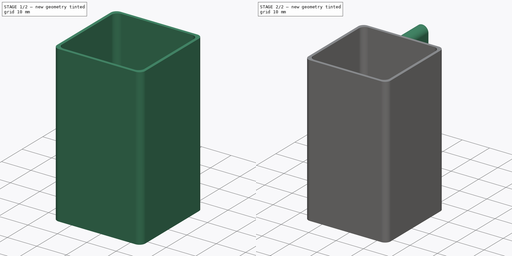
[diagram: build sequence overview — one tinted view per stage of 2, left to right]
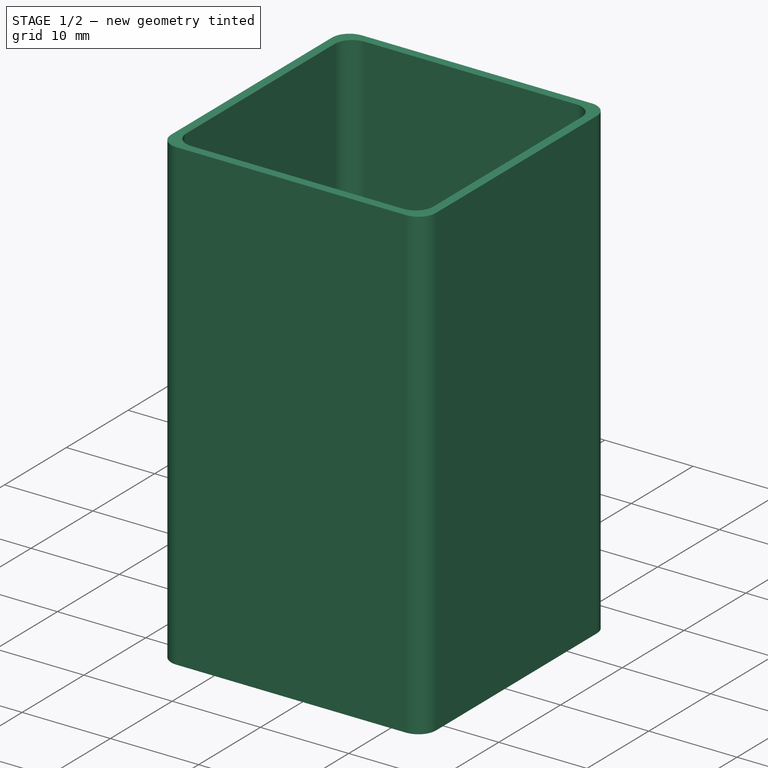
[diagram: stage 1 of 2 — iso view after this stage's code; geometry added in this stage tinted green]
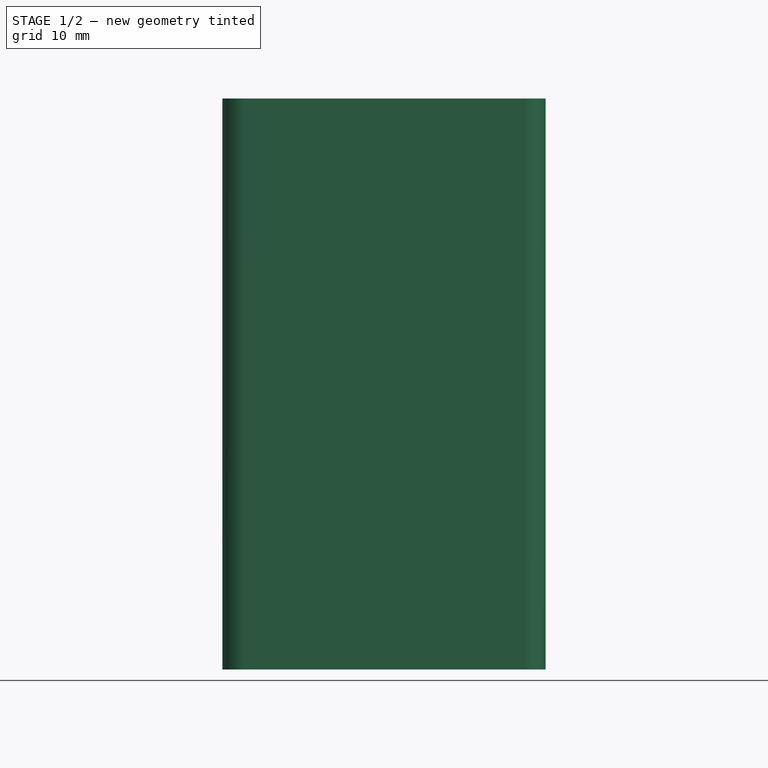
[diagram: stage 1 of 2 — front view after this stage's code; geometry added in this stage tinted green]
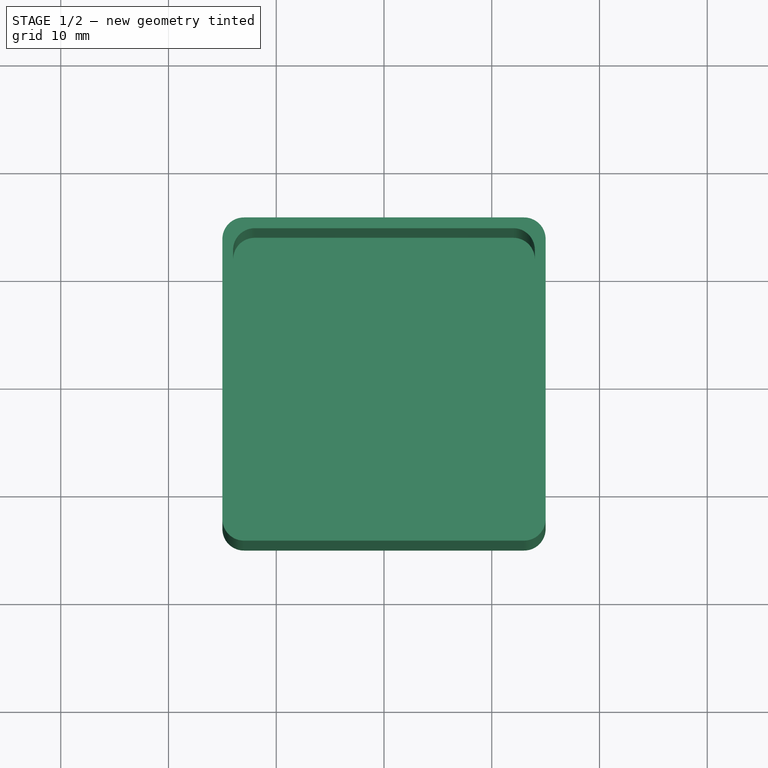
[diagram: stage 1 of 2 — top view after this stage's code; geometry added in this stage tinted green]
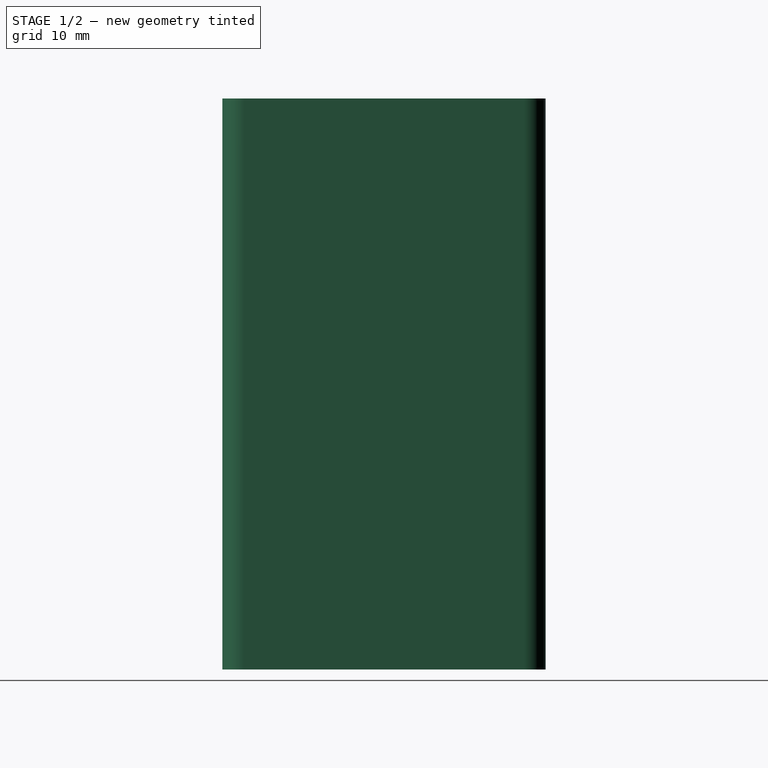
[diagram: stage 1 of 2 — right view after this stage's code; geometry added in this stage tinted green]
FCSTD DOCUMENT  (FreeCAD 1.0R39285 (Git))
Label: Feeler_Guage_Holder
License: All rights reserved
LicenseURL: https://en.wikipedia.org/wiki/All_rights_reserved
objects: Sketcher::SketchObject×4, PartDesign::Pad×4, PartDesign::Body×1
note: 21 computed .brp shape members not serialized (recipe doc carries the construction recipe); baked Part::Feature solids carry a one-line shape summary decoded from their .brp

FEATURE [Sketcher::SketchObject] Sketch
  ArcFitTolerance = 1e-06
  AttachmentSupport = -> [XY_Plane]
  FullyConstrained = true
  MakeInternals = false
  MapMode = 5
  sketch-geometry (12):
    g0: LineSegment StartX=-15 StartY=13 StartZ=0 EndX=-15 EndY=-13 EndZ=0
    g1: LineSegment StartX=-13 StartY=-15 StartZ=0 EndX=13 EndY=-15 EndZ=0
    g2: LineSegment StartX=15 StartY=-13 StartZ=0 EndX=15 EndY=13 EndZ=0
    g3: LineSegment StartX=13 StartY=15 StartZ=0 EndX=-13 EndY=15 EndZ=0
    g4: ArcOfCircle CenterX=-13 CenterY=13 CenterZ=0 NormalX=0 NormalY=0 NormalZ=1 AngleXU=0 Radius=2 StartAngle=1.5708 EndAngle=3.14159
    g5: GeomPoint [constr] X=-15 Y=15 Z=0
    g6: ArcOfCircle CenterX=13 CenterY=13 CenterZ=0 NormalX=0 NormalY=0 NormalZ=1 AngleXU=0 Radius=2 StartAngle=0 EndAngle=1.5708
    g7: GeomPoint [constr] X=15 Y=15 Z=0
    g8: ArcOfCircle CenterX=-13 CenterY=-13 CenterZ=0 NormalX=0 NormalY=0 NormalZ=1 AngleXU=0 Radius=2 StartAngle=3.14159 EndAngle=4.71239
    g9: GeomPoint [constr] X=-15 Y=-15 Z=0
    g10: ArcOfCircle CenterX=13 CenterY=-13 CenterZ=0 NormalX=0 NormalY=0 NormalZ=1 AngleXU=0 Radius=2 StartAngle=4.71239 EndAngle=6.28319
    g11: GeomPoint [constr] X=15 Y=-15 Z=0
  constraints (27):
    c: Vertical(g0)
    c: Vertical(g2)
    c: Horizontal(g1)
    c: Horizontal(g3)
    c: Distance(g5,g7) = 30
    c: Distance(g9,g5) = 30
    c: Symmetric(g5,g11,g-1)
    c: PointOnObject(g5,g3)
    c: PointOnObject(g5,g0)
    c: Tangent(g3,g4) = -1.5708
    c: Tangent(g0,g4) = -1.5708
    c: PointOnObject(g7,g3)
    c: PointOnObject(g7,g2)
    c: Tangent(g3,g6) = -1.5708
    c: Tangent(g2,g6) = -1.5708
    c: PointOnObject(g9,g0)
    c: PointOnObject(g9,g1)
    c: Tangent(g0,g8) = -1.5708
    c: Tangent(g1,g8) = -1.5708
    c: PointOnObject(g11,g2)
    c: PointOnObject(g11,g1)
    c: Tangent(g2,g10) = -1.5708
    c: Tangent(g1,g10) = -1.5708
    c: Radius(g10) = 2
    c: Radius(g8) = 2
    c: Radius(g4) = 2
    c: Radius(g6) = 2
FEATURE [PartDesign::Pad] Pad
  Direction = (0,0,1)
  Length = 2
  Length2 = 10
  Profile = -> Sketch
  ReferenceAxis = -> Sketch [N_Axis]
  Refine = true
  Suppressed = false
  Type = 0
FEATURE [Sketcher::SketchObject] Sketch001
  ArcFitTolerance = 1e-06
  AttachmentSupport = -> [Pad]
  FullyConstrained = true
  MakeInternals = false
  MapMode = 5
  Placement = pos=(0,0,2) rot=(0,0,1;0rad)
  sketch-geometry (24):
    g0: LineSegment StartX=-15 StartY=13 StartZ=0 EndX=-15 EndY=-13 EndZ=0
    g1: LineSegment StartX=-13 StartY=-15 StartZ=0 EndX=13 EndY=-15 EndZ=0
    g2: LineSegment StartX=15 StartY=-13 StartZ=0 EndX=15 EndY=13 EndZ=0
    g3: LineSegment StartX=13 StartY=15 StartZ=0 EndX=-13 EndY=15 EndZ=0
    g4: LineSegment StartX=-14 StartY=12 StartZ=0 EndX=-14 EndY=-12 EndZ=0
    g5: LineSegment StartX=-12 StartY=-14 StartZ=0 EndX=12 EndY=-14 EndZ=0
    g6: LineSegment StartX=14 StartY=-12 StartZ=0 EndX=14 EndY=12 EndZ=0
    g7: LineSegment StartX=12 StartY=14 StartZ=0 EndX=-12 EndY=14 EndZ=0
    g8: ArcOfCircle CenterX=-13 CenterY=13 CenterZ=0 NormalX=0 NormalY=0 NormalZ=1 AngleXU=0 Radius=2 StartAngle=1.5708 EndAngle=3.14159
    g9: GeomPoint [constr] X=-15 Y=15 Z=0
    g10: ArcOfCircle CenterX=13 CenterY=13 CenterZ=0 NormalX=0 NormalY=0 NormalZ=1 AngleXU=0 Radius=2 StartAngle=3e-16 EndAngle=1.5708
    g11: GeomPoint [constr] X=15 Y=15 Z=0
    g12: ArcOfCircle CenterX=13 CenterY=-13 CenterZ=0 NormalX=0 NormalY=0 NormalZ=1 AngleXU=0 Radius=2 StartAngle=4.71239 EndAngle=6.28319
    g13: GeomPoint [constr] X=15 Y=-15 Z=0
    g14: ArcOfCircle CenterX=-13 CenterY=-13 CenterZ=0 NormalX=0 NormalY=0 NormalZ=1 AngleXU=0 Radius=2 StartAngle=3.14159 EndAngle=4.71239
    g15: GeomPoint [constr] X=-15 Y=-15 Z=0
    g16: ArcOfCircle CenterX=-12 CenterY=12 CenterZ=0 NormalX=0 NormalY=0 NormalZ=1 AngleXU=0 Radius=2 StartAngle=1.5708 EndAngle=3.14159
    g17: GeomPoint [constr] X=-14 Y=14 Z=0
    g18: ArcOfCircle CenterX=12 CenterY=12 CenterZ=0 NormalX=0 NormalY=0 NormalZ=1 AngleXU=0 Radius=2 StartAngle=0 EndAngle=1.5708
    g19: GeomPoint [constr] X=14 Y=14 Z=0
    g20: ArcOfCircle CenterX=-12 CenterY=-12 CenterZ=0 NormalX=0 NormalY=0 NormalZ=1 AngleXU=0 Radius=2 StartAngle=3.14159 EndAngle=4.71239
    g21: GeomPoint [constr] X=-14 Y=-14 Z=0
    g22: ArcOfCircle CenterX=12 CenterY=-12 CenterZ=0 NormalX=0 NormalY=0 NormalZ=1 AngleXU=0 Radius=2 StartAngle=4.71239 EndAngle=6.28319
    g23: GeomPoint [constr] X=14 Y=-14 Z=0
  constraints (54):
    c: Vertical(g0)
    c: Vertical(g2)
    c: Horizontal(g1)
    c: Horizontal(g3)
    c: Distance(g9,g11) = 30
    c: Distance(g15,g9) = 30
    c: Vertical(g4)
    c: Vertical(g6)
    c: Horizontal(g5)
    c: Horizontal(g7)
    c: Distance(g17,g19) = 28
    c: Distance(g21,g17) = 28
    c: Symmetric(g9,g13,g-1)
    c: PointOnObject(g9,g3)
    c: PointOnObject(g9,g0)
    c: Tangent(g3,g8) = -1.5708
    c: Tangent(g0,g8) = -1.5708
    c: PointOnObject(g11,g3)
    c: PointOnObject(g11,g2)
    c: Tangent(g3,g10) = -1.5708
    c: Tangent(g2,g10) = -1.5708
    c: PointOnObject(g13,g2)
    c: PointOnObject(g13,g1)
    c: Tangent(g2,g12) = -1.5708
    c: Tangent(g1,g12) = -1.5708
    c: PointOnObject(g15,g0)
    c: PointOnObject(g15,g1)
    c: Tangent(g0,g14) = -1.5708
    c: Tangent(g1,g14) = -1.5708
    c: PointOnObject(g17,g4)
    c: PointOnObject(g17,g7)
    c: Tangent(g4,g16) = -1.5708
    c: Tangent(g7,g16) = -1.5708
    c: PointOnObject(g19,g7)
    c: PointOnObject(g19,g6)
    c: Tangent(g7,g18) = -1.5708
    c: Tangent(g6,g18) = -1.5708
    c: PointOnObject(g21,g4)
    c: PointOnObject(g21,g5)
    c: Tangent(g4,g20) = -1.5708
    c: Tangent(g5,g20) = -1.5708
    c: PointOnObject(g23,g6)
    c: PointOnObject(g23,g5)
    c: Tangent(g6,g22) = -1.5708
    c: Tangent(g5,g22) = -1.5708
    c: Radius(g8) = 2
    c: Radius(g10) = 2
    c: Radius(g12) = 2
    c: Radius(g14) = 2
    c: Radius(g16) = 2
    c: Radius(g18) = 2
    c: Radius(g20) = 2
    c: Radius(g22) = 2
    c: Symmetric(g17,g23,g-1)
FEATURE [PartDesign::Pad] Pad001
  BaseFeature = -> Pad
  Direction = (0,0,1)
  Length = 51
  Length2 = 10
  Profile = -> Sketch001
  ReferenceAxis = -> Sketch001 [N_Axis]
  Refine = true
  Suppressed = false
  Type = 0
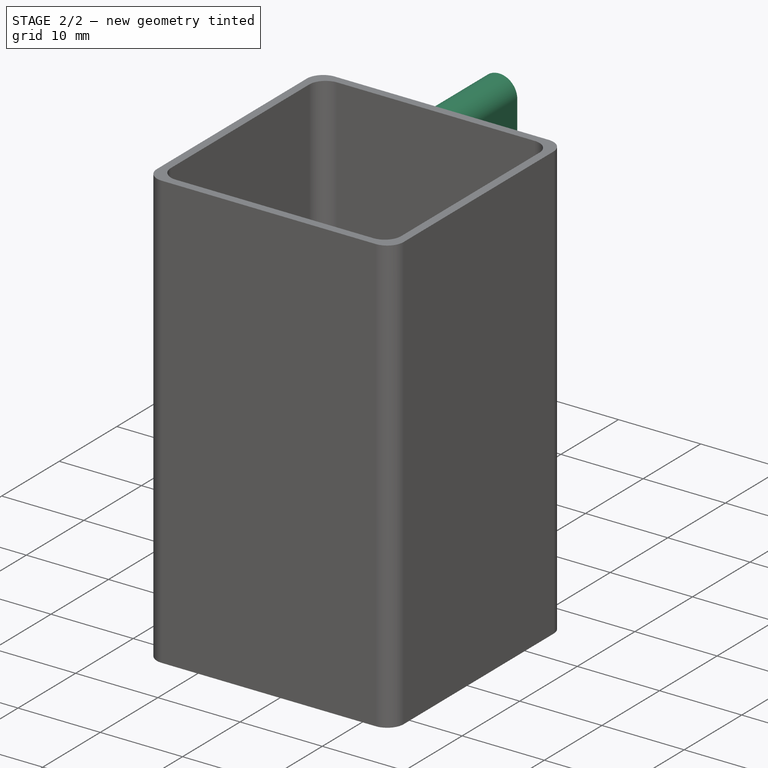
[diagram: stage 2 of 2 — iso view after this stage's code; geometry added in this stage tinted green]
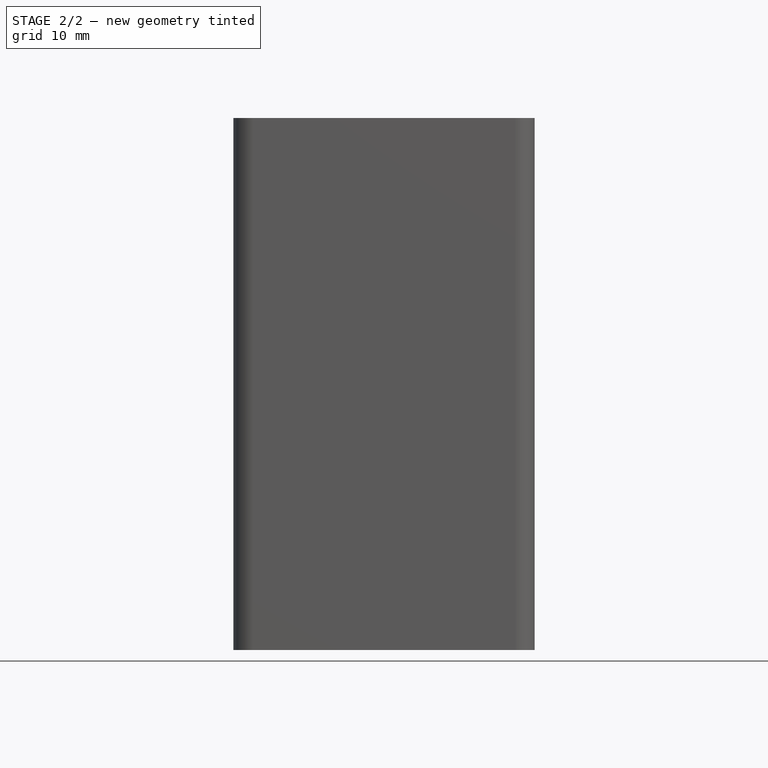
[diagram: stage 2 of 2 — front view after this stage's code; geometry added in this stage tinted green]
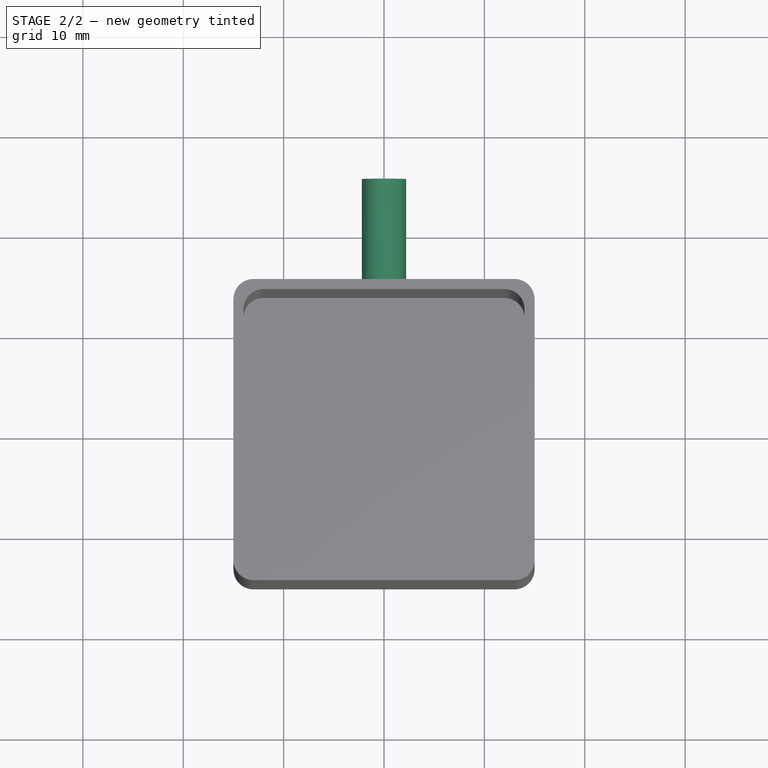
[diagram: stage 2 of 2 — top view after this stage's code; geometry added in this stage tinted green]
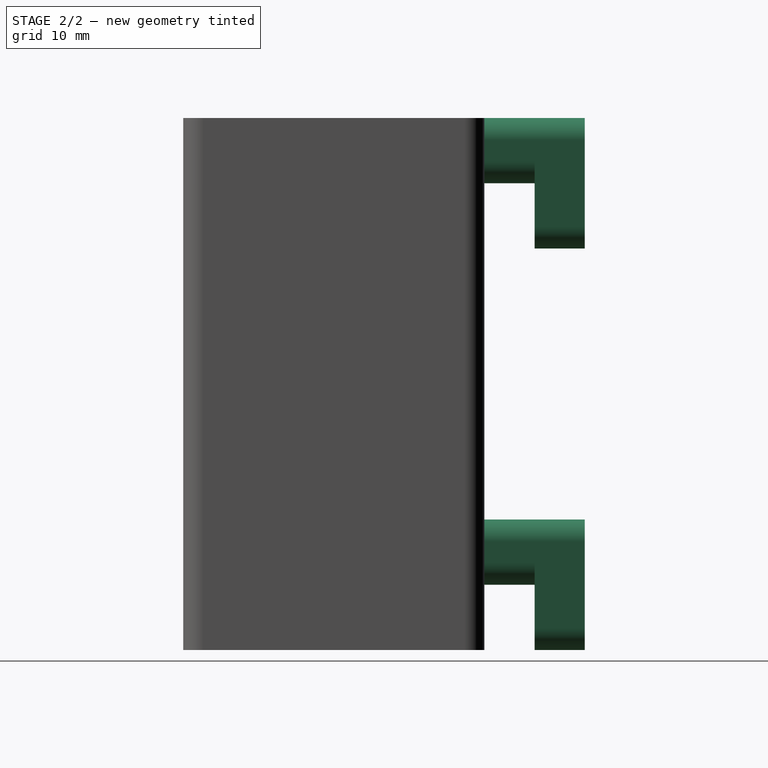
[diagram: stage 2 of 2 — right view after this stage's code; geometry added in this stage tinted green]
FEATURE [Sketcher::SketchObject] Sketch002
  ArcFitTolerance = 1e-06
  AttachmentSupport = -> [Pad001]
  ExternalGeometry = -> [Pad001]
  FullyConstrained = true
  MakeInternals = false
  MapMode = 5
  Placement = pos=(0,15,0) rot=(0,0.707107,0.707107;3.14159rad)
  sketch-geometry (10):
    g0: ArcOfCircle CenterX=-5e-16 CenterY=50.8 CenterZ=0 NormalX=0 NormalY=0 NormalZ=1 AngleXU=0 Radius=2.2 StartAngle=4.901e-13 EndAngle=3.14159
    g1: ArcOfCircle CenterX=-2.3e-15 CenterY=48.7 CenterZ=0 NormalX=0 NormalY=0 NormalZ=1 AngleXU=0 Radius=2.2 StartAngle=3.14159 EndAngle=6.28319
    g2: LineSegment StartX=2.2 StartY=50.8 StartZ=0 EndX=2.2 EndY=48.7 EndZ=0
    g3: LineSegment StartX=-2.2 StartY=50.8 StartZ=0 EndX=-2.2 EndY=48.7 EndZ=0
    g4: ArcOfCircle CenterX=-6e-16 CenterY=8.7 CenterZ=0 NormalX=0 NormalY=0 NormalZ=1 AngleXU=0 Radius=2.2 StartAngle=3.14159 EndAngle=6.28319
    g5: ArcOfCircle CenterX=-5e-16 CenterY=10.8 CenterZ=0 NormalX=0 NormalY=0 NormalZ=1 AngleXU=0 Radius=2.2 StartAngle=0 EndAngle=3.14159
    g6: LineSegment StartX=-2.2 StartY=8.7 StartZ=0 EndX=-2.2 EndY=10.8 EndZ=0
    g7: LineSegment StartX=2.2 StartY=8.7 StartZ=0 EndX=2.2 EndY=10.8 EndZ=0
    g8: LineSegment [constr] StartX=-13 StartY=53 StartZ=0 EndX=0 EndY=50.8 EndZ=0
    g9: LineSegment [constr] StartX=-5e-16 StartY=50.8 StartZ=0 EndX=13 EndY=53 EndZ=0
  constraints (24):
    c: Tangent(g0,g2) = 1.5708
    c: Tangent(g0,g3) = -1.5708
    c: Tangent(g1,g2) = 1.5708
    c: Tangent(g1,g3) = -1.5708
    c: Equal(g0,g1)
    c: Vertical(g3)
    c: Distance(g0,g1) = 2.1
    c: Radius(g0) = 2.2
    c: Tangent(g4,g6) = 1.5708
    c: Tangent(g4,g7) = -1.5708
    c: Tangent(g5,g6) = 1.5708
    c: Tangent(g5,g7) = -1.5708
    c: Equal(g4,g5)
    c: Vertical(g7)
    c: Distance(g4,g5) = 2.1
    c: Radius(g4) = 2.2
    c: DistanceX(g0,g5) = 0
    c: DistanceY(g0,g-3) = 2.2
    c: Coincident(g8,g-3)
    c: Coincident(g8,g0)
    c: Coincident(g9,g0)
    c: Coincident(g9,g-3)
    c: Equal(g9,g8)
    c: DistanceY(g5,g0) = 40
FEATURE [PartDesign::Pad] Pad002
  BaseFeature = -> Pad001
  Direction = (0,1,-2e-16)
  Length = 5
  Length2 = 10
  Profile = -> Sketch002
  ReferenceAxis = -> Sketch002 [N_Axis]
  Refine = true
  Suppressed = false
  Type = 0
FEATURE [Sketcher::SketchObject] Sketch003
  ArcFitTolerance = 1e-06
  AttachmentSupport = -> [Pad002]
  ExternalGeometry = -> [Pad002]
  FullyConstrained = true
  MakeInternals = false
  MapMode = 5
  Placement = pos=(0,20,-4.5e-15) rot=(0,0.707107,0.707107;3.14159rad)
  sketch-geometry (8):
    g0: ArcOfCircle CenterX=-5e-16 CenterY=50.8 CenterZ=0 NormalX=0 NormalY=0 NormalZ=1 AngleXU=0 Radius=2.2 StartAngle=6e-16 EndAngle=3.14159
    g1: ArcOfCircle CenterX=-5e-16 CenterY=42.2 CenterZ=0 NormalX=0 NormalY=0 NormalZ=1 AngleXU=0 Radius=2.2 StartAngle=3.14159 EndAngle=6.28319
    g2: LineSegment StartX=2.2 StartY=50.8 StartZ=0 EndX=2.2 EndY=42.2 EndZ=0
    g3: LineSegment StartX=-2.2 StartY=50.8 StartZ=0 EndX=-2.2 EndY=42.2 EndZ=0
    g4: ArcOfCircle CenterX=-5e-16 CenterY=10.8 CenterZ=0 NormalX=0 NormalY=0 NormalZ=1 AngleXU=0 Radius=2.2 StartAngle=1e-16 EndAngle=3.14159
    g5: ArcOfCircle CenterX=-3e-16 CenterY=2.2 CenterZ=0 NormalX=0 NormalY=0 NormalZ=1 AngleXU=0 Radius=2.2 StartAngle=3.14159 EndAngle=6.28319
    g6: LineSegment StartX=2.2 StartY=10.8 StartZ=0 EndX=2.2 EndY=2.2 EndZ=0
    g7: LineSegment StartX=-2.2 StartY=10.8 StartZ=0 EndX=-2.2 EndY=2.2 EndZ=0
  constraints (19):
    c: Tangent(g0,g2) = 1.5708
    c: Tangent(g0,g3) = -1.5708
    c: Tangent(g1,g2) = 1.5708
    c: Tangent(g1,g3) = -1.5708
    c: Equal(g0,g1)
    c: Vertical(g3)
    c: Distance(g0,g1) = 8.6
    c: Radius(g0) = 2.2
    c: Tangent(g4,g6) = 1.5708
    c: Tangent(g4,g7) = -1.5708
    c: Tangent(g5,g6) = 1.5708
    c: Tangent(g5,g7) = -1.5708
    c: Equal(g4,g5)
    c: Vertical(g7)
    c: Distance(g4,g5) = 8.6
    c: Radius(g4) = 2.2
    c: DistanceY(g4,g0) = 40
    c: DistanceX(g0,g4) = 0
    c: Coincident(g0,g-3)
FEATURE [PartDesign::Pad] Pad003
  BaseFeature = -> Pad002
  Direction = (0,1,-2e-16)
  Length = 5
  Length2 = 10
  Profile = -> Sketch003
  ReferenceAxis = -> Sketch003 [N_Axis]
  Refine = true
  Suppressed = false
  Type = 0
FEATURE [PartDesign::Body] Body
  AllowCompound = false
  Group = -> [Sketch,Pad,Sketch001,Pad001,Sketch002,Pad002,Sketch003,Pad003]
  Origin = -> Origin
  Tip = -> Pad003
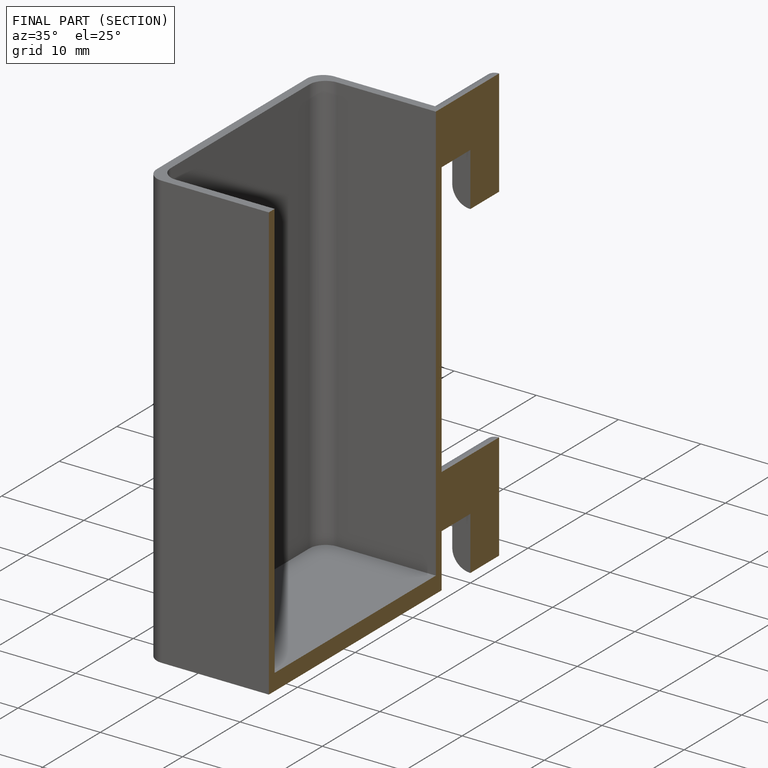
[diagram: finished part — half-section view (interior)]
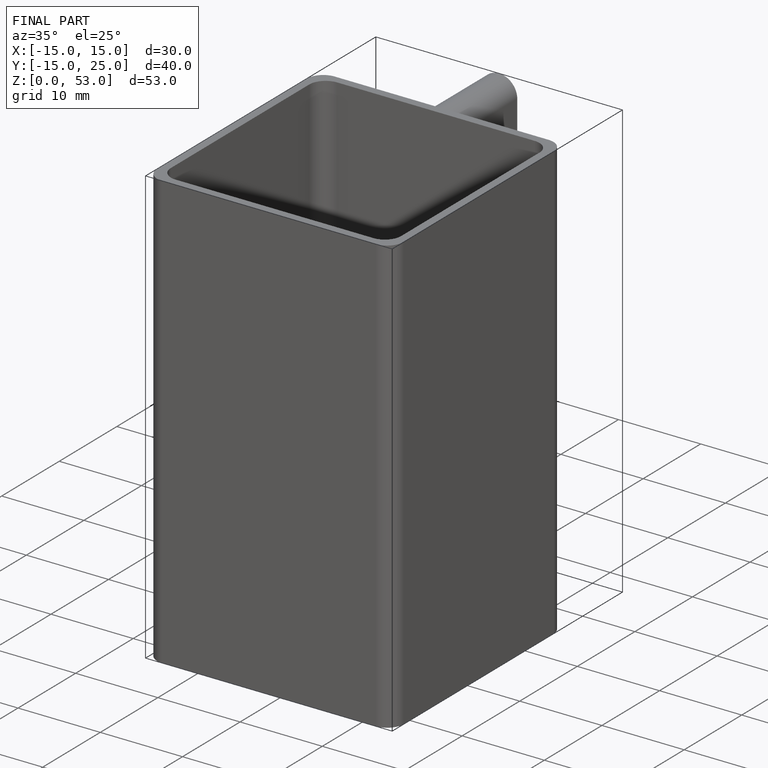
[diagram: finished part — iso view with bounding-box wireframe]
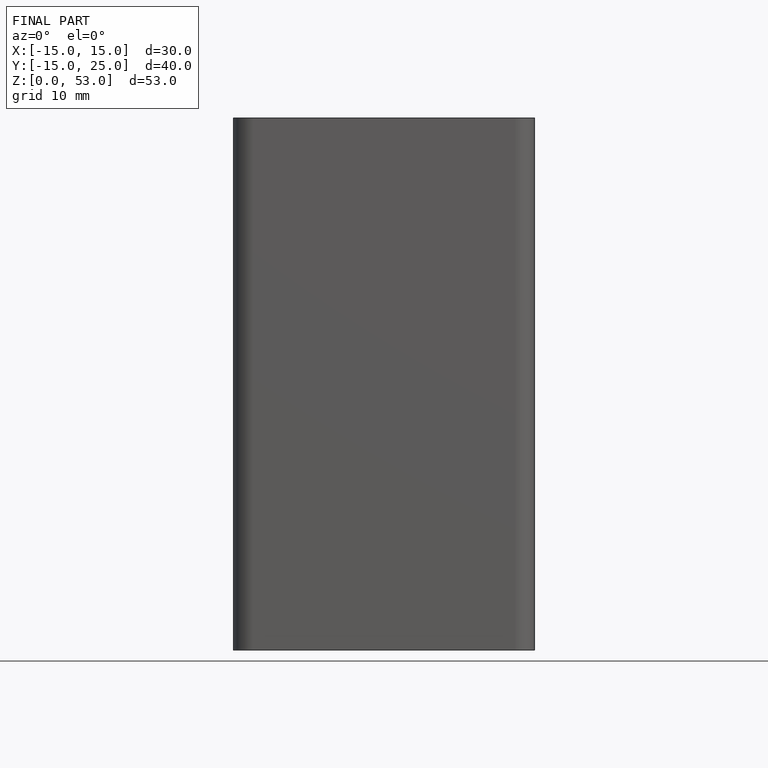
[diagram: finished part — front view with bounding-box wireframe]
